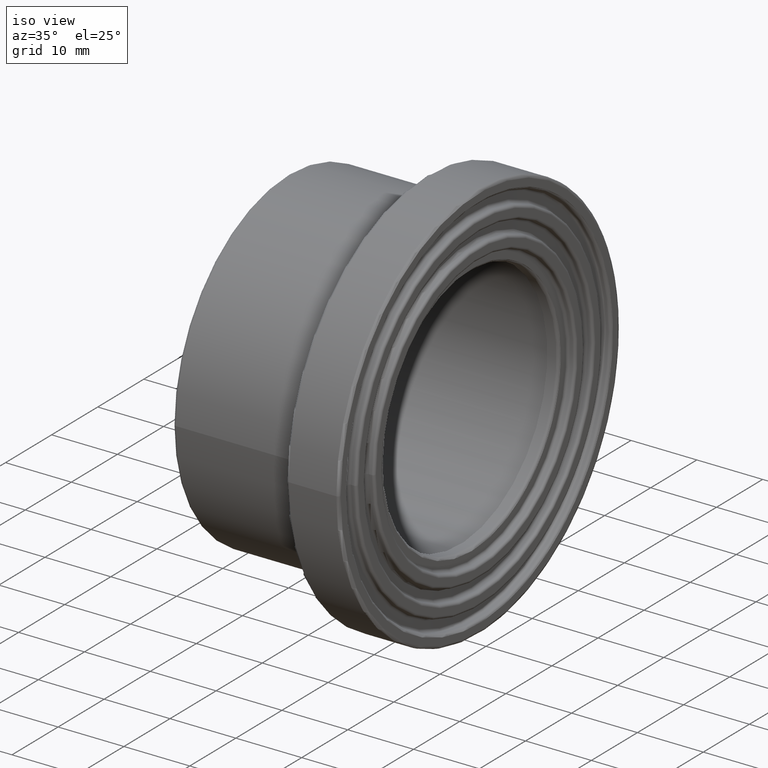
[diagram: clean part render]
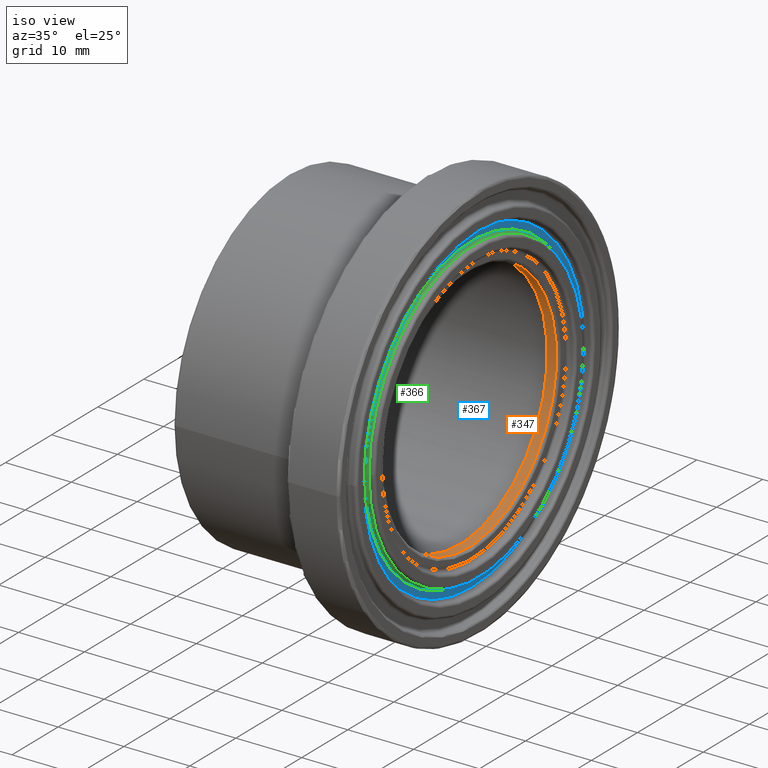
[diagram: same view with three faces highlighted in distinct colors, each labeled with its STEP entity id]
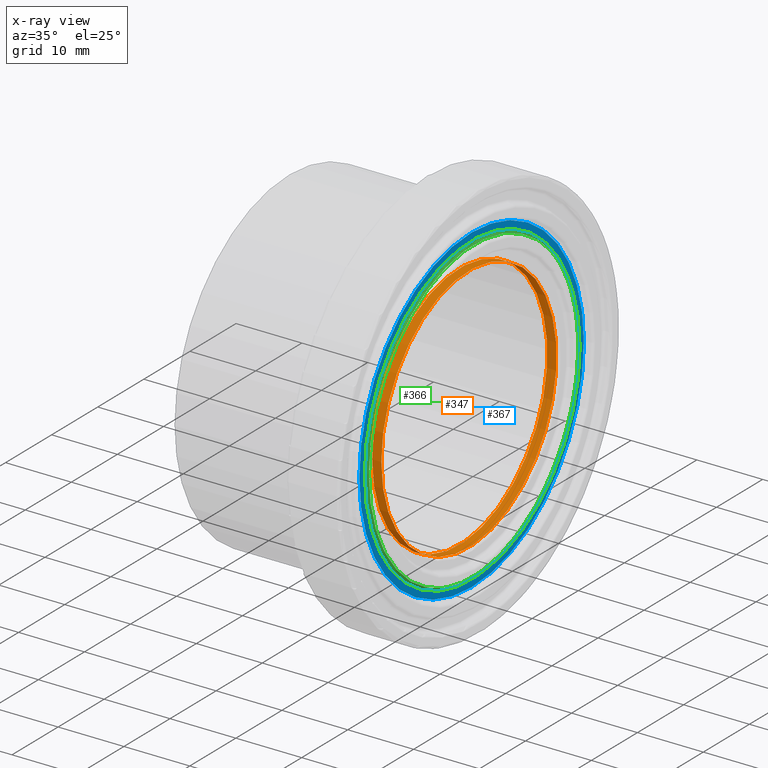
[diagram: x-ray of the same camera — body ghosted, the three highlighted faces saturated]
A machine part, iso view with three faces highlighted in distinct colors.
The next image is the same camera in x-ray (body ghosted, the three faces saturated) — at least one of them is partly hidden behind the body in this view.
Their STEP definitions:

[orange] entity #347 — the highlighted cylindrical surface (bore or boss wall) has radius 19 mm, axis along (-1, 0, 0).
#15=CYLINDRICAL_SURFACE('',#385,19.);
#35=FACE_BOUND('',#104,.T.);
#68=FACE_OUTER_BOUND('',#103,.T.);
#103=EDGE_LOOP('',(#268));
#104=EDGE_LOOP('',(#269));
#165=CIRCLE('',#381,19.);
#168=CIRCLE('',#386,19.);
#198=VERTEX_POINT('',#582);
#201=VERTEX_POINT('',#590);
#231=EDGE_CURVE('',#198,#198,#165,.T.);
#234=EDGE_CURVE('',#201,#201,#168,.T.);
#268=ORIENTED_EDGE('',*,*,#234,.T.);
#269=ORIENTED_EDGE('',*,*,#231,.F.);
#347=ADVANCED_FACE('',(#68,#35),#15,.F.);
#381=AXIS2_PLACEMENT_3D('',#583,#450,#451);
#385=AXIS2_PLACEMENT_3D('',#589,#458,#459);
#386=AXIS2_PLACEMENT_3D('',#591,#460,#461);
#450=DIRECTION('center_axis',(-1.,0.,0.));
#451=DIRECTION('ref_axis',(0.,1.,6.12323399573677E-17));
#458=DIRECTION('center_axis',(-1.,0.,0.));
#459=DIRECTION('ref_axis',(0.,-1.,0.));
#460=DIRECTION('center_axis',(-1.,0.,0.));
#461=DIRECTION('ref_axis',(0.,0.,1.));
#582=CARTESIAN_POINT('',(27.4,-19.,1.16341445918999E-15));
#583=CARTESIAN_POINT('Origin',(27.4,0.,0.));
#589=CARTESIAN_POINT('Origin',(26.9,0.,0.));
#590=CARTESIAN_POINT('',(26.,-19.,0.));
#591=CARTESIAN_POINT('Origin',(26.,0.,0.));

[blue] entity #367 — the highlighted planar face has unit normal (1, 0, 0).
#30=PLANE('',#427);
#55=FACE_BOUND('',#144,.T.);
#88=FACE_OUTER_BOUND('',#143,.T.);
#143=EDGE_LOOP('',(#308));
#144=EDGE_LOOP('',(#309));
#189=CIRCLE('',#426,23.2333333333333);
#190=CIRCLE('',#428,24.35);
#222=VERTEX_POINT('',#651);
#223=VERTEX_POINT('',#654);
#255=EDGE_CURVE('',#222,#222,#189,.T.);
#256=EDGE_CURVE('',#223,#223,#190,.T.);
#308=ORIENTED_EDGE('',*,*,#256,.F.);
#309=ORIENTED_EDGE('',*,*,#255,.F.);
#367=ADVANCED_FACE('',(#88,#55),#30,.T.);
#426=AXIS2_PLACEMENT_3D('',#652,#540,#541);
#427=AXIS2_PLACEMENT_3D('',#653,#542,#543);
#428=AXIS2_PLACEMENT_3D('',#655,#544,#545);
#540=DIRECTION('center_axis',(1.,0.,0.));
#541=DIRECTION('ref_axis',(0.,1.,6.12323399573676E-17));
#542=DIRECTION('center_axis',(1.,0.,0.));
#543=DIRECTION('ref_axis',(0.,0.,-1.));
#544=DIRECTION('center_axis',(-1.,0.,0.));
#545=DIRECTION('ref_axis',(0.,1.,6.12323399573677E-17));
#651=CARTESIAN_POINT('',(27.8,-23.2333333333333,-4.26789409502852E-15));
#652=CARTESIAN_POINT('Origin',(27.8,0.,0.));
#653=CARTESIAN_POINT('Origin',(27.8,-24.75,0.));
#654=CARTESIAN_POINT('',(27.8,-24.35,1.4910074779619E-15));
#655=CARTESIAN_POINT('Origin',(27.8,0.,0.));

[green] entity #366 — the highlighted toroidal blend (fillet) surface has major radius 23.2333 mm and minor (blend) radius 0.4 mm.
#54=FACE_BOUND('',#142,.T.);
#87=FACE_OUTER_BOUND('',#141,.T.);
#141=EDGE_LOOP('',(#306));
#142=EDGE_LOOP('',(#307));
#188=CIRCLE('',#424,22.8333333333333);
#189=CIRCLE('',#426,23.2333333333333);
#221=VERTEX_POINT('',#648);
#222=VERTEX_POINT('',#651);
#254=EDGE_CURVE('',#221,#221,#188,.T.);
#255=EDGE_CURVE('',#222,#222,#189,.T.);
#306=ORIENTED_EDGE('',*,*,#254,.T.);
#307=ORIENTED_EDGE('',*,*,#255,.T.);
#339=TOROIDAL_SURFACE('',#425,23.2333333333333,0.4);
#366=ADVANCED_FACE('',(#87,#54),#339,.F.);
#424=AXIS2_PLACEMENT_3D('',#649,#536,#537);
#425=AXIS2_PLACEMENT_3D('',#650,#538,#539);
#426=AXIS2_PLACEMENT_3D('',#652,#540,#541);
#536=DIRECTION('center_axis',(-1.,0.,0.));
#537=DIRECTION('ref_axis',(0.,1.,6.12323399573677E-17));
#538=DIRECTION('center_axis',(-1.,0.,0.));
#539=DIRECTION('ref_axis',(0.,0.,1.));
#540=DIRECTION('center_axis',(1.,0.,0.));
#541=DIRECTION('ref_axis',(0.,1.,6.12323399573676E-17));
#648=CARTESIAN_POINT('',(28.2,-22.8333333333333,1.39813842902656E-15));
#649=CARTESIAN_POINT('Origin',(28.2,0.,0.));
#650=CARTESIAN_POINT('Origin',(28.2,0.,0.));
#651=CARTESIAN_POINT('',(27.8,-23.2333333333333,-4.26789409502852E-15));
#652=CARTESIAN_POINT('Origin',(27.8,0.,0.));